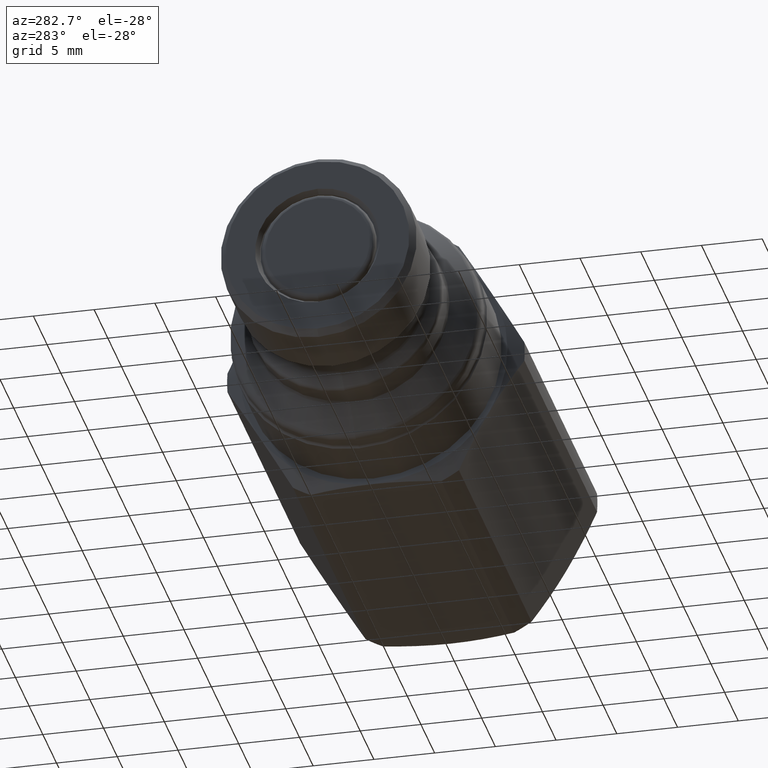
[diagram: clean part render]
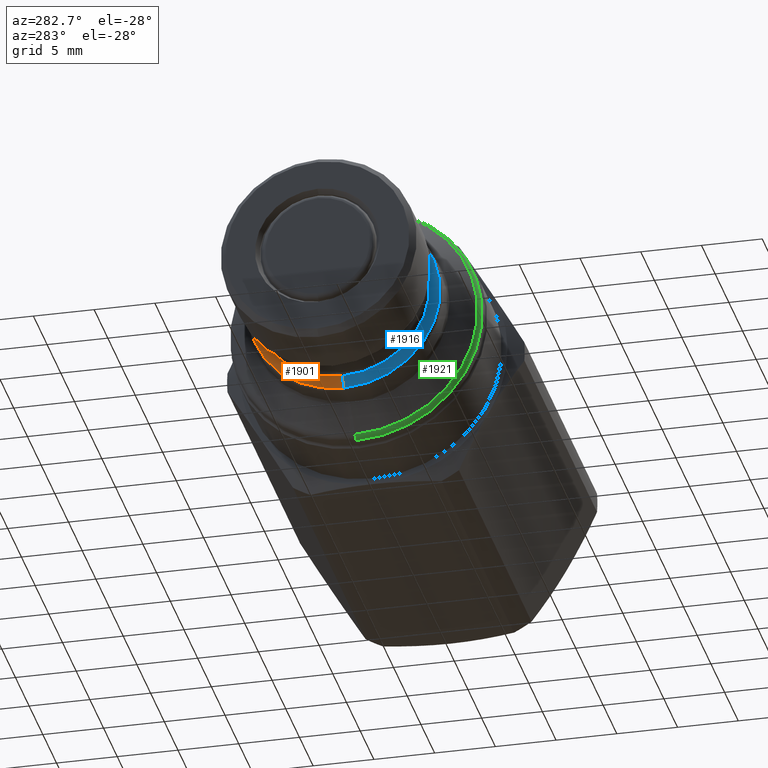
[diagram: same view with three faces highlighted in distinct colors, each labeled with its STEP entity id]
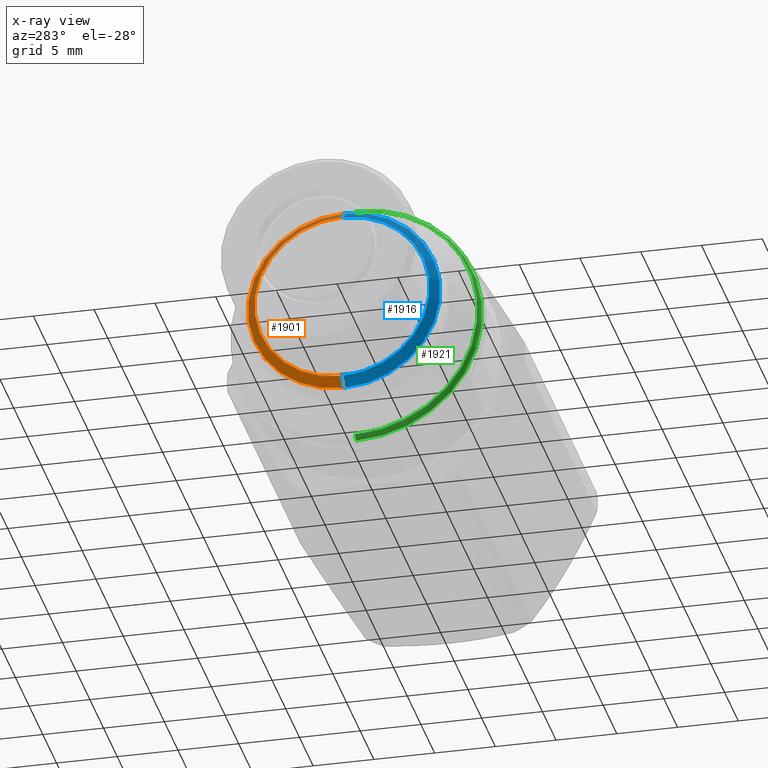
[diagram: x-ray of the same camera — body ghosted, the three highlighted faces saturated]
A machine part, auxiliary view with three faces highlighted in distinct colors.
The next image is the same camera in x-ray (body ghosted, the three faces saturated) — at least one of them is partly hidden behind the body in this view.
Their STEP definitions:

[orange] entity #1901 — the highlighted conical surface has half-angle 45 deg.
#80 = CARTESIAN_POINT ( 'NONE',  ( 9.733489360325986400, 0.0000000000000000000, 0.0000000000000000000 ) ) ;
#81 = DIRECTION ( 'NONE',  ( -1.000000000000000000, 0.0000000000000000000, 0.0000000000000000000 ) ) ;
#82 = DIRECTION ( 'NONE',  ( 0.0000000000000000000, 0.0000000000000000000, 1.000000000000000000 ) ) ;
#86 = CARTESIAN_POINT ( 'NONE',  ( 9.014250544783481100, 0.0000000000000000000, 0.0000000000000000000 ) ) ;
#87 = DIRECTION ( 'NONE',  ( 1.000000000000000000, -0.0000000000000000000, -0.0000000000000000000 ) ) ;
#88 = DIRECTION ( 'NONE',  ( 0.0000000000000000000, 0.0000000000000000000, -1.000000000000000000 ) ) ;
#89 = CARTESIAN_POINT ( 'NONE',  ( 8.779935969732719100, 8.541911424052788800E-016, 6.975000000000000500 ) ) ;
#90 = DIRECTION ( 'NONE',  ( 0.7071067811865464600, 8.659560562354947600E-017, 0.7071067811865486800 ) ) ;
#91 = CARTESIAN_POINT ( 'NONE',  ( 8.779935969732719100, 0.0000000000000000000, -6.975000000000000500 ) ) ;
#92 = DIRECTION ( 'NONE',  ( 0.7071067811865464600, 0.0000000000000000000, -0.7071067811865486800 ) ) ;
#474 = CARTESIAN_POINT ( 'NONE',  ( 9.733489360325986400, 9.709677531658943400E-016, 7.928553390593270600 ) ) ;
#479 = CARTESIAN_POINT ( 'NONE',  ( 9.733489360325986400, 0.0000000000000000000, -7.928553390593270600 ) ) ;
#537 = CARTESIAN_POINT ( 'NONE',  ( 8.779935969732719100, 0.0000000000000000000, 0.0000000000000000000 ) ) ;
#538 = DIRECTION ( 'NONE',  ( 1.000000000000000000, -0.0000000000000000000, -0.0000000000000000000 ) ) ;
#539 = DIRECTION ( 'NONE',  ( 0.0000000000000000000, 0.0000000000000000000, -1.000000000000000000 ) ) ;
#768 = CARTESIAN_POINT ( 'NONE',  ( 9.014250544783481100, 0.0000000000000000000, -7.209314575050763500 ) ) ;
#777 = CARTESIAN_POINT ( 'NONE',  ( 9.014250544783481100, 9.269270775020610900E-016, 7.209314575050763500 ) ) ;
#859 = AXIS2_PLACEMENT_3D ( 'NONE', #537, #538, #539 ) ;
#977 = ORIENTED_EDGE ( 'NONE', *, *, #1617, .T. ) ;
#978 = ORIENTED_EDGE ( 'NONE', *, *, #1618, .T. ) ;
#979 = ORIENTED_EDGE ( 'NONE', *, *, #1615, .T. ) ;
#980 = ORIENTED_EDGE ( 'NONE', *, *, #1619, .F. ) ;
#1130 = EDGE_LOOP ( 'NONE', ( #977, #978, #979, #980 ) ) ;
#1282 = CIRCLE ( 'NONE', #1757, 7.928553390593270600 ) ;
#1284 = LINE ( 'NONE', #89, #1286 ) ;
#1285 = CIRCLE ( 'NONE', #1759, 7.209314575050763500 ) ;
#1286 = VECTOR ( 'NONE', #90, 999.9999999999998900 ) ;
#1287 = LINE ( 'NONE', #91, #1288 ) ;
#1288 = VECTOR ( 'NONE', #92, 999.9999999999998900 ) ;
#1403 = FACE_OUTER_BOUND ( 'NONE', #1130, .T. ) ;
#1404 = CONICAL_SURFACE ( 'NONE', #859, 6.975000000000000500, 0.7853981633974498300 ) ;
#1615 = EDGE_CURVE ( 'NONE', #1822, #1828, #1282, .T. ) ;
#1617 = EDGE_CURVE ( 'NONE', #2192, #2201, #1285, .T. ) ;
#1618 = EDGE_CURVE ( 'NONE', #2201, #1822, #1284, .T. ) ;
#1619 = EDGE_CURVE ( 'NONE', #2192, #1828, #1287, .T. ) ;
#1757 = AXIS2_PLACEMENT_3D ( 'NONE', #80, #81, #82 ) ;
#1759 = AXIS2_PLACEMENT_3D ( 'NONE', #86, #87, #88 ) ;
#1822 = VERTEX_POINT ( 'NONE', #474 ) ;
#1828 = VERTEX_POINT ( 'NONE', #479 ) ;
#1901 = ADVANCED_FACE ( 'NONE', ( #1403 ), #1404, .T. ) ;
#2192 = VERTEX_POINT ( 'NONE', #768 ) ;
#2201 = VERTEX_POINT ( 'NONE', #777 ) ;

[blue] entity #1916 — the highlighted conical surface has half-angle 45 deg.
#89 = CARTESIAN_POINT ( 'NONE',  ( 8.779935969732719100, 8.541911424052788800E-016, 6.975000000000000500 ) ) ;
#90 = DIRECTION ( 'NONE',  ( 0.7071067811865464600, 8.659560562354947600E-017, 0.7071067811865486800 ) ) ;
#91 = CARTESIAN_POINT ( 'NONE',  ( 8.779935969732719100, 0.0000000000000000000, -6.975000000000000500 ) ) ;
#92 = DIRECTION ( 'NONE',  ( 0.7071067811865464600, 0.0000000000000000000, -0.7071067811865486800 ) ) ;
#397 = CARTESIAN_POINT ( 'NONE',  ( 9.733489360325986400, 0.0000000000000000000, 0.0000000000000000000 ) ) ;
#398 = DIRECTION ( 'NONE',  ( -1.000000000000000000, 0.0000000000000000000, 0.0000000000000000000 ) ) ;
#399 = DIRECTION ( 'NONE',  ( 0.0000000000000000000, 0.0000000000000000000, 1.000000000000000000 ) ) ;
#474 = CARTESIAN_POINT ( 'NONE',  ( 9.733489360325986400, 9.709677531658943400E-016, 7.928553390593270600 ) ) ;
#479 = CARTESIAN_POINT ( 'NONE',  ( 9.733489360325986400, 0.0000000000000000000, -7.928553390593270600 ) ) ;
#586 = CARTESIAN_POINT ( 'NONE',  ( 8.779935969732719100, 0.0000000000000000000, 0.0000000000000000000 ) ) ;
#587 = DIRECTION ( 'NONE',  ( 1.000000000000000000, -0.0000000000000000000, -0.0000000000000000000 ) ) ;
#588 = DIRECTION ( 'NONE',  ( 0.0000000000000000000, 0.0000000000000000000, -1.000000000000000000 ) ) ;
#768 = CARTESIAN_POINT ( 'NONE',  ( 9.014250544783481100, 0.0000000000000000000, -7.209314575050763500 ) ) ;
#777 = CARTESIAN_POINT ( 'NONE',  ( 9.014250544783481100, 9.269270775020610900E-016, 7.209314575050763500 ) ) ;
#831 = AXIS2_PLACEMENT_3D ( 'NONE', #397, #398, #399 ) ;
#874 = AXIS2_PLACEMENT_3D ( 'NONE', #586, #587, #588 ) ;
#1154 = EDGE_LOOP ( 'NONE', ( #2068, #2127, #2047, #2122 ) ) ;
#1238 = CIRCLE ( 'NONE', #1733, 7.209314575050763500 ) ;
#1284 = LINE ( 'NONE', #89, #1286 ) ;
#1286 = VECTOR ( 'NONE', #90, 999.9999999999998900 ) ;
#1287 = LINE ( 'NONE', #91, #1288 ) ;
#1288 = VECTOR ( 'NONE', #92, 999.9999999999998900 ) ;
#1361 = CIRCLE ( 'NONE', #831, 7.928553390593270600 ) ;
#1432 = FACE_OUTER_BOUND ( 'NONE', #1154, .T. ) ;
#1433 = CONICAL_SURFACE ( 'NONE', #874, 6.975000000000000500, 0.7853981633974498300 ) ;
#1581 = EDGE_CURVE ( 'NONE', #2201, #2192, #1238, .T. ) ;
#1618 = EDGE_CURVE ( 'NONE', #2201, #1822, #1284, .T. ) ;
#1619 = EDGE_CURVE ( 'NONE', #2192, #1828, #1287, .T. ) ;
#1698 = EDGE_CURVE ( 'NONE', #1828, #1822, #1361, .T. ) ;
#1733 = AXIS2_PLACEMENT_3D ( 'NONE', #2210, #2214, #2209 ) ;
#1822 = VERTEX_POINT ( 'NONE', #474 ) ;
#1828 = VERTEX_POINT ( 'NONE', #479 ) ;
#1916 = ADVANCED_FACE ( 'NONE', ( #1432 ), #1433, .T. ) ;
#2047 = ORIENTED_EDGE ( 'NONE', *, *, #1619, .T. ) ;
#2068 = ORIENTED_EDGE ( 'NONE', *, *, #1618, .F. ) ;
#2122 = ORIENTED_EDGE ( 'NONE', *, *, #1698, .T. ) ;
#2127 = ORIENTED_EDGE ( 'NONE', *, *, #1581, .T. ) ;
#2192 = VERTEX_POINT ( 'NONE', #768 ) ;
#2201 = VERTEX_POINT ( 'NONE', #777 ) ;
#2209 = DIRECTION ( 'NONE',  ( 0.0000000000000000000, 0.0000000000000000000, -1.000000000000000000 ) ) ;
#2210 = CARTESIAN_POINT ( 'NONE',  ( 9.014250544783481100, 0.0000000000000000000, 0.0000000000000000000 ) ) ;
#2214 = DIRECTION ( 'NONE',  ( 1.000000000000000000, -0.0000000000000000000, -0.0000000000000000000 ) ) ;

[green] entity #1921 — the highlighted toroidal blend (fillet) surface has major radius 9.575 mm and minor (blend) radius 0.8 mm.
#39 = CARTESIAN_POINT ( 'NONE',  ( 14.25286340886242800, 1.172599310183590700E-015, -9.574999999999999300 ) ) ;
#40 = DIRECTION ( 'NONE',  ( 0.0000000000000000000, 1.000000000000000000, 1.224646799147353200E-016 ) ) ;
#41 = DIRECTION ( 'NONE',  ( 0.0000000000000000000, -1.224646799147353200E-016, 1.000000000000000000 ) ) ;
#45 = CARTESIAN_POINT ( 'NONE',  ( 14.25286340886242800, 0.0000000000000000000, 9.574999999999999300 ) ) ;
#46 = DIRECTION ( 'NONE',  ( 0.0000000000000000000, -1.000000000000000000, 0.0000000000000000000 ) ) ;
#47 = DIRECTION ( 'NONE',  ( 0.0000000000000000000, 0.0000000000000000000, -1.000000000000000000 ) ) ;
#403 = CARTESIAN_POINT ( 'NONE',  ( 13.66207501371992800, 0.0000000000000000000, 0.0000000000000000000 ) ) ;
#404 = DIRECTION ( 'NONE',  ( -1.000000000000000000, 0.0000000000000000000, 0.0000000000000000000 ) ) ;
#405 = DIRECTION ( 'NONE',  ( 0.0000000000000000000, 0.0000000000000000000, 1.000000000000000000 ) ) ;
#406 = CARTESIAN_POINT ( 'NONE',  ( 14.25286340886242800, 0.0000000000000000000, 0.0000000000000000000 ) ) ;
#407 = DIRECTION ( 'NONE',  ( 1.000000000000000000, -0.0000000000000000000, -0.0000000000000000000 ) ) ;
#408 = DIRECTION ( 'NONE',  ( 0.0000000000000000000, 0.0000000000000000000, 1.000000000000000000 ) ) ;
#444 = CARTESIAN_POINT ( 'NONE',  ( 13.66207501371992800, 0.0000000000000000000, -10.11441549121706600 ) ) ;
#469 = CARTESIAN_POINT ( 'NONE',  ( 13.66207501371992800, 1.238658655656538500E-015, 10.11441549121706600 ) ) ;
#601 = CARTESIAN_POINT ( 'NONE',  ( 14.25286340886242800, 0.0000000000000000000, 0.0000000000000000000 ) ) ;
#602 = DIRECTION ( 'NONE',  ( -1.000000000000000000, 0.0000000000000000000, 0.0000000000000000000 ) ) ;
#603 = DIRECTION ( 'NONE',  ( 0.0000000000000000000, 0.0000000000000000000, 1.000000000000000000 ) ) ;
#753 = CARTESIAN_POINT ( 'NONE',  ( 14.25286340886242800, 1.270571054115378900E-015, -10.37500000000000000 ) ) ;
#754 = CARTESIAN_POINT ( 'NONE',  ( 14.25286340886242800, 0.0000000000000000000, 10.37500000000000000 ) ) ;
#833 = AXIS2_PLACEMENT_3D ( 'NONE', #403, #404, #405 ) ;
#834 = AXIS2_PLACEMENT_3D ( 'NONE', #406, #407, #408 ) ;
#879 = AXIS2_PLACEMENT_3D ( 'NONE', #601, #602, #603 ) ;
#1145 = EDGE_LOOP ( 'NONE', ( #2114, #2094, #2095, #2044 ) ) ;
#1263 = CIRCLE ( 'NONE', #1746, 0.8000000000000003800 ) ;
#1265 = CIRCLE ( 'NONE', #1748, 0.8000000000000003800 ) ;
#1363 = CIRCLE ( 'NONE', #833, 10.11441549121706500 ) ;
#1364 = CIRCLE ( 'NONE', #834, 10.37500000000000000 ) ;
#1442 = FACE_OUTER_BOUND ( 'NONE', #1145, .T. ) ;
#1443 = TOROIDAL_SURFACE ( 'NONE', #879, 9.574999999999999300, 0.8000000000000000400 ) ;
#1600 = EDGE_CURVE ( 'NONE', #2177, #1789, #1263, .T. ) ;
#1602 = EDGE_CURVE ( 'NONE', #2178, #1817, #1265, .T. ) ;
#1700 = EDGE_CURVE ( 'NONE', #1789, #1817, #1363, .T. ) ;
#1701 = EDGE_CURVE ( 'NONE', #2178, #2177, #1364, .T. ) ;
#1746 = AXIS2_PLACEMENT_3D ( 'NONE', #39, #40, #41 ) ;
#1748 = AXIS2_PLACEMENT_3D ( 'NONE', #45, #46, #47 ) ;
#1789 = VERTEX_POINT ( 'NONE', #444 ) ;
#1817 = VERTEX_POINT ( 'NONE', #469 ) ;
#1921 = ADVANCED_FACE ( 'NONE', ( #1442 ), #1443, .T. ) ;
#2044 = ORIENTED_EDGE ( 'NONE', *, *, #1700, .F. ) ;
#2094 = ORIENTED_EDGE ( 'NONE', *, *, #1701, .F. ) ;
#2095 = ORIENTED_EDGE ( 'NONE', *, *, #1602, .T. ) ;
#2114 = ORIENTED_EDGE ( 'NONE', *, *, #1600, .F. ) ;
#2177 = VERTEX_POINT ( 'NONE', #753 ) ;
#2178 = VERTEX_POINT ( 'NONE', #754 ) ;